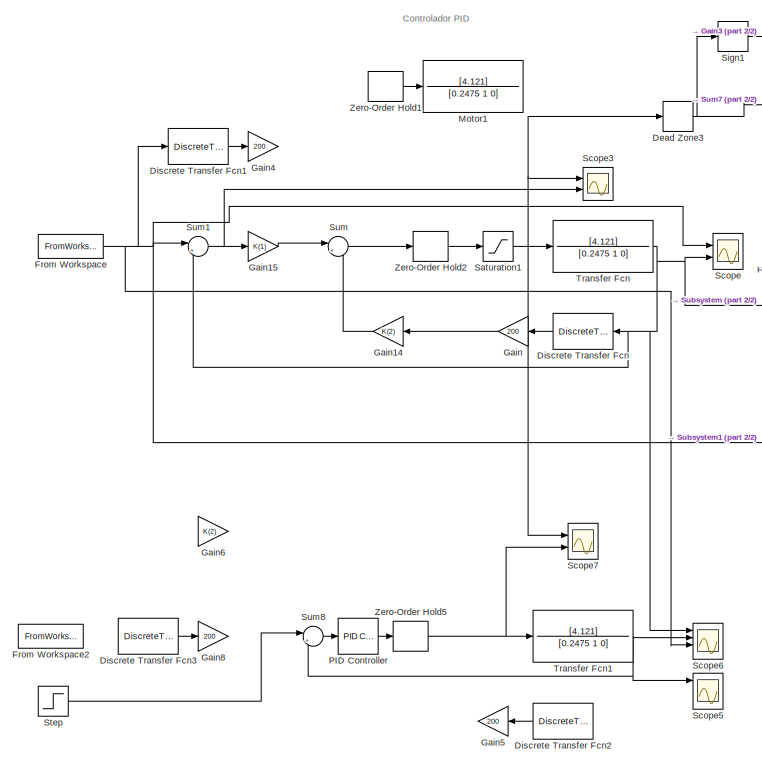
[diagram: root canvas - part 1/2, left side, full height]
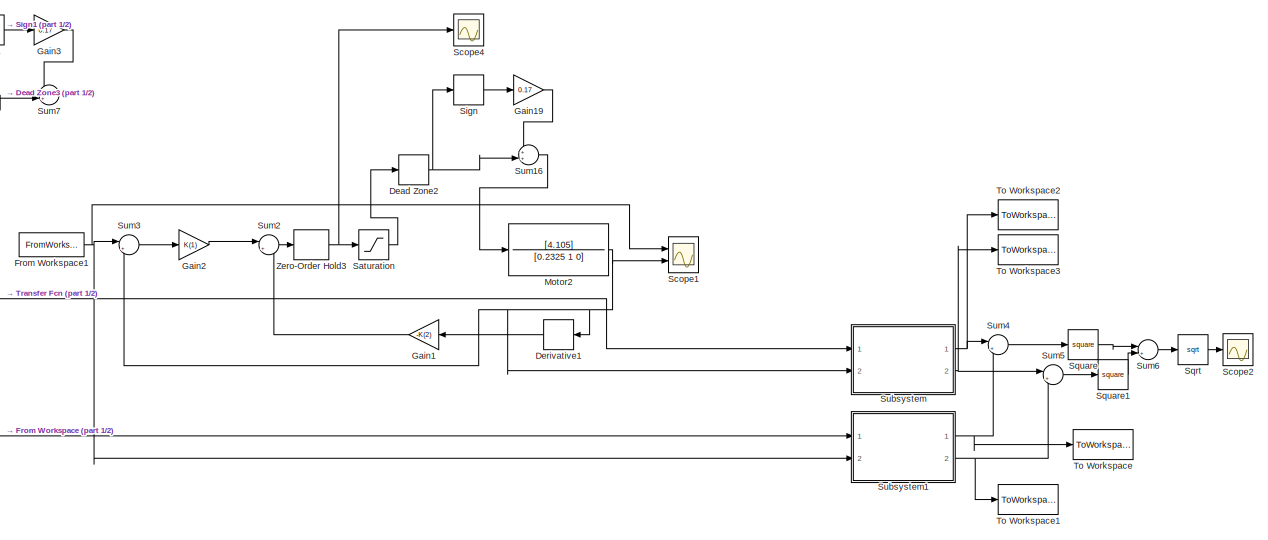
[diagram: root canvas - part 2/2, middle right region]
MODEL slx_8b594aa3f8f0
KIND model
CONFIG AbsTol = auto
CONFIG EnableMultiTasking = off
CONFIG FixedStep = auto
CONFIG MaxStep = auto
CONFIG MinStep = auto
CONFIG RelTol = 1e-3
CONFIG SampleTimeConstraint = Unconstrained
CONFIG Solver = VariableStepAuto
CONFIG SolverName = VariableStepAuto
CONFIG StartTime = 0.0
CONFIG StopTime = 60
BLOCK [DeadZone] Dead Zone2
  LowerValue = -0.17
  UpperValue = 0.17
BLOCK [DeadZone] Dead Zone3
  LowerValue = -0.17
  UpperValue = 0.17
BLOCK [Derivative] Derivative1
  CoefficientInTFapproximation = 100
BLOCK [DiscreteTransferFcn] Discrete Transfer Fcn
  Denominator = [1 0]
  InputPortMap = u0
  Numerator = [1,-1]
  Ports = [1, 1]
BLOCK [DiscreteTransferFcn] Discrete Transfer Fcn1
  Denominator = [1 0]
  InputPortMap = u0
  Numerator = [1,-1]
  Ports = [1, 1]
BLOCK [DiscreteTransferFcn] Discrete Transfer Fcn2
  Denominator = [1 0]
  InputPortMap = u0
  Numerator = [1,-1]
  Ports = [1, 1]
BLOCK [DiscreteTransferFcn] Discrete Transfer Fcn3
  Denominator = [1 0]
  InputPortMap = u0
  Numerator = [1,-1]
  Ports = [1, 1]
BLOCK [FromWorkspace] From Workspace
  VariableName = ttheta1
  ZeroCross = on
BLOCK [FromWorkspace] From Workspace1
  VariableName = ttheta2
  ZeroCross = on
BLOCK [FromWorkspace] From Workspace2
  VariableName = ttheta1
  ZeroCross = on
BLOCK [Gain] Gain
  Gain = 200
  OutDataTypeStr = Inherit: Inherit via internal rule
  ParamDataTypeStr = Inherit: Inherit via internal rule
  SaturateOnIntegerOverflow = off
BLOCK [Gain] Gain1
  Gain = -K(2)
  OutDataTypeStr = Inherit: Inherit via internal rule
  ParamDataTypeStr = Inherit: Inherit via internal rule
  SaturateOnIntegerOverflow = off
BLOCK [Gain] Gain14
  Gain = K(2)
  OutDataTypeStr = Inherit: Inherit via internal rule
  ParamDataTypeStr = Inherit: Inherit via internal rule
  SaturateOnIntegerOverflow = off
BLOCK [Gain] Gain15
  Gain = K(1)
  OutDataTypeStr = Inherit: Inherit via internal rule
  ParamDataTypeStr = Inherit: Inherit via internal rule
  SaturateOnIntegerOverflow = off
BLOCK [Gain] Gain19
  Gain = 0.17
  OutDataTypeStr = Inherit: Inherit via internal rule
  ParamDataTypeStr = Inherit: Inherit via internal rule
  SaturateOnIntegerOverflow = off
BLOCK [Gain] Gain2
  Gain = K(1)
  OutDataTypeStr = Inherit: Inherit via internal rule
  ParamDataTypeStr = Inherit: Inherit via internal rule
  SaturateOnIntegerOverflow = off
BLOCK [Gain] Gain3
  Gain = 0.17
  OutDataTypeStr = Inherit: Inherit via internal rule
  ParamDataTypeStr = Inherit: Inherit via internal rule
  SaturateOnIntegerOverflow = off
BLOCK [Gain] Gain4
  Gain = 200
  OutDataTypeStr = Inherit: Inherit via internal rule
  ParamDataTypeStr = Inherit: Inherit via internal rule
  SaturateOnIntegerOverflow = off
BLOCK [Gain] Gain5
  Gain = 200
  OutDataTypeStr = Inherit: Inherit via internal rule
  ParamDataTypeStr = Inherit: Inherit via internal rule
  SaturateOnIntegerOverflow = off
BLOCK [Gain] Gain6
  Gain = K(2)
  OutDataTypeStr = Inherit: Inherit via internal rule
  ParamDataTypeStr = Inherit: Inherit via internal rule
  SaturateOnIntegerOverflow = off
BLOCK [Gain] Gain8
  Gain = 200
  OutDataTypeStr = Inherit: Inherit via internal rule
  ParamDataTypeStr = Inherit: Inherit via internal rule
  SaturateOnIntegerOverflow = off
BLOCK [TransferFcn] Motor1
  Denominator = [0.2475 1 0]
  Numerator = [4.121]
BLOCK [TransferFcn] Motor2
  Denominator = [0.2325 1 0]
  Numerator = [4.105]
BLOCK [Reference] PID Controller  REF=simulink/Continuous/PID Controller
  Ports = [1, 1]
  SourceBlock = simulink/Continuous/PID Controller
  SourceProductBaseCode = SL
  SourceProductName = Simulink
  SourceType = PID 1dof
BLOCK [Saturate] Saturation
  InputPortMap = u0
  LowerLimit = -1
  Ports = [1, 1]
  UpperLimit = 1
BLOCK [Saturate] Saturation1
  InputPortMap = u0
  LowerLimit = -1
  Ports = [1, 1]
  UpperLimit = 1
BLOCK [Scope] Scope
  Floating = off
  NumInputPorts = 2
  Ports = [2]
  ScopeSpecificationString = Simulink.scopes.TimeScopeBlockCfg('CurrentConfiguration', extmgr.ConfigurationSet(extmgr.Configuration('Core','General UI',true),extmgr.Configuration('Core','Source UI',true),extmgr.Configuration('Sources','WiredSimulink',true),extmgr.Configuration('Visuals','Time Domain',true,'SerializedDisplays',{struct('MinYLimReal','-1.23479','MaxYLimReal','1.73498','YLabelReal','','MinYLimMag','0.00000','MaxY...<+1771ch>
BLOCK [Scope] Scope1
  Floating = off
  NumInputPorts = 2
  Ports = [2]
  ScopeSpecificationString = Simulink.scopes.TimeScopeBlockCfg('CurrentConfiguration', extmgr.ConfigurationSet(extmgr.Configuration('Core','General UI',true),extmgr.Configuration('Core','Source UI',true),extmgr.Configuration('Sources','WiredSimulink',true,'DataLoggingVariableName','ScopeData1'),extmgr.Configuration('Visuals','Time Domain',true,'SerializedDisplays',{struct('MinYLimReal','1.14278','MaxYLimReal','2.0316','YLabel...<+1756ch>
BLOCK [Scope] Scope2
  Floating = off
  NumInputPorts = 1
  Ports = [1]
  ScopeSpecificationString = Simulink.scopes.TimeScopeBlockCfg('CurrentConfiguration', extmgr.ConfigurationSet(extmgr.Configuration('Core','General UI',true),extmgr.Configuration('Core','Source UI',true),extmgr.Configuration('Sources','WiredSimulink',true,'DataLoggingVariableName','ScopeData2'),extmgr.Configuration('Visuals','Time Domain',true,'SerializedDisplays',{struct('MinYLimReal','-73.18866','MaxYLimReal','659.61888','Y...<+1400ch>
BLOCK [Scope] Scope3
  Floating = off
  NumInputPorts = 2
  Ports = [2]
  ScopeSpecificationString = Simulink.scopes.TimeScopeBlockCfg('CurrentConfiguration', extmgr.ConfigurationSet(extmgr.Configuration('Core','General UI',true),extmgr.Configuration('Core','Source UI',true),extmgr.Configuration('Sources','WiredSimulink',true,'DataLoggingVariableName','ScopeData3'),extmgr.Configuration('Visuals','Time Domain',true,'SerializedDisplays',{struct('MinYLimReal','-1.24546','MaxYLimReal','1.20917','YLab...<+1448ch>
BLOCK [Scope] Scope4
  Floating = off
  NumInputPorts = 1
  Ports = [1]
  ScopeSpecificationString = Simulink.scopes.TimeScopeBlockCfg('CurrentConfiguration', extmgr.ConfigurationSet(extmgr.Configuration('Core','General UI',true),extmgr.Configuration('Core','Source UI',true),extmgr.Configuration('Sources','WiredSimulink',true,'DataLoggingVariableName','ScopeData4'),extmgr.Configuration('Visuals','Time Domain',true,'SerializedDisplays',{struct('MinYLimReal','-8.77027','MaxYLimReal','62.30915','YLa...<+1379ch>
BLOCK [Scope] Scope5
  Floating = off
  NumInputPorts = 4
  Ports = [4]
  ScopeSpecificationString = Simulink.scopes.TimeScopeBlockCfg('CurrentConfiguration', extmgr.ConfigurationSet(extmgr.Configuration('Core','General UI',true),extmgr.Configuration('Core','Source UI',true),extmgr.Configuration('Sources','WiredSimulink',true,'DataLoggingVariableName','ScopeData5'),extmgr.Configuration('Visuals','Time Domain',true,'SerializedDisplays',{struct('MinYLimReal','-0.04091','MaxYLimReal','1.09805','YLab...<+1570ch>
BLOCK [Scope] Scope6
  Floating = off
  NumInputPorts = 4
  Ports = [4]
  ScopeSpecificationString = Simulink.scopes.TimeScopeBlockCfg('CurrentConfiguration', extmgr.ConfigurationSet(extmgr.Configuration('Core','General UI',true),extmgr.Configuration('Core','Source UI',true),extmgr.Configuration('Sources','WiredSimulink',true,'DataLoggingVariableName','ScopeData6'),extmgr.Configuration('Visuals','Time Domain',true,'SerializedDisplays',{struct('MinYLimReal','-9.84107','MaxYLimReal','3.22164','YLab...<+1884ch>
BLOCK [Scope] Scope7
  Floating = off
  NumInputPorts = 2
  Ports = [2]
  ScopeSpecificationString = Simulink.scopes.TimeScopeBlockCfg('CurrentConfiguration', extmgr.ConfigurationSet(extmgr.Configuration('Core','General UI',true),extmgr.Configuration('Core','Source UI',true),extmgr.Configuration('Sources','WiredSimulink',true,'DataLoggingVariableName','ScopeData7'),extmgr.Configuration('Visuals','Time Domain',true,'SerializedDisplays',{struct('MinYLimReal','-1.25','MaxYLimReal','1.25','YLabelReal...<+1794ch>
BLOCK [Signum] Sign
BLOCK [Signum] Sign1
BLOCK [Sqrt] Sqrt
BLOCK [Math] Square
  Operator = square
  Ports = [1, 1]
BLOCK [Math] Square1
  Operator = square
  Ports = [1, 1]
BLOCK [Step] Step
  SampleTime = 0
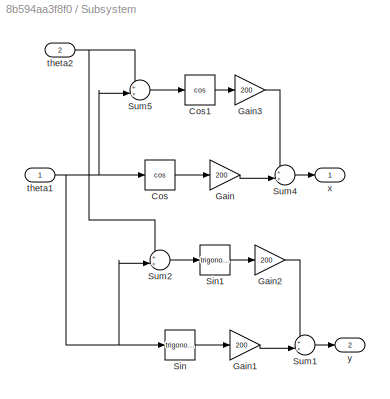
BLOCK [SubSystem] Subsystem
  Ports = [2, 2]
  RequestExecContextInheritance = off
BLOCK [Trigonometry] Subsystem/Cos
  Operator = cos
  Ports = [1, 1]
BLOCK [Trigonometry] Subsystem/Cos1
  Operator = cos
  Ports = [1, 1]
BLOCK [Gain] Subsystem/Gain
  Gain = 200
  OutDataTypeStr = Inherit: Inherit via internal rule
  ParamDataTypeStr = Inherit: Inherit via internal rule
  SaturateOnIntegerOverflow = off
BLOCK [Gain] Subsystem/Gain1
  Gain = 200
  OutDataTypeStr = Inherit: Inherit via internal rule
  ParamDataTypeStr = Inherit: Inherit via internal rule
  SaturateOnIntegerOverflow = off
BLOCK [Gain] Subsystem/Gain2
  Gain = 200
  OutDataTypeStr = Inherit: Inherit via internal rule
  ParamDataTypeStr = Inherit: Inherit via internal rule
  SaturateOnIntegerOverflow = off
BLOCK [Gain] Subsystem/Gain3
  Gain = 200
  OutDataTypeStr = Inherit: Inherit via internal rule
  ParamDataTypeStr = Inherit: Inherit via internal rule
  SaturateOnIntegerOverflow = off
BLOCK [Trigonometry] Subsystem/Sin
  Ports = [1, 1]
BLOCK [Trigonometry] Subsystem/Sin1
  Ports = [1, 1]
BLOCK [Sum] Subsystem/Sum1
  IconShape = round
  InputSameDT = off
  Inputs = ++|
  OutDataTypeStr = Inherit: Inherit via internal rule
  Ports = [2, 1]
  SaturateOnIntegerOverflow = off
BLOCK [Sum] Subsystem/Sum2
  IconShape = round
  InputSameDT = off
  Inputs = ++|
  OutDataTypeStr = Inherit: Inherit via internal rule
  Ports = [2, 1]
  SaturateOnIntegerOverflow = off
BLOCK [Sum] Subsystem/Sum4
  IconShape = round
  InputSameDT = off
  Inputs = ++|
  OutDataTypeStr = Inherit: Inherit via internal rule
  Ports = [2, 1]
  SaturateOnIntegerOverflow = off
BLOCK [Sum] Subsystem/Sum5
  IconShape = round
  InputSameDT = off
  Inputs = ++|
  OutDataTypeStr = Inherit: Inherit via internal rule
  Ports = [2, 1]
  SaturateOnIntegerOverflow = off
BLOCK [Inport] Subsystem/theta1
  IconDisplay = Port number
BLOCK [Inport] Subsystem/theta2
  IconDisplay = Port number
  Port = 2
BLOCK [Outport] Subsystem/x
  IconDisplay = Port number
BLOCK [Outport] Subsystem/y
  IconDisplay = Port number
  Port = 2
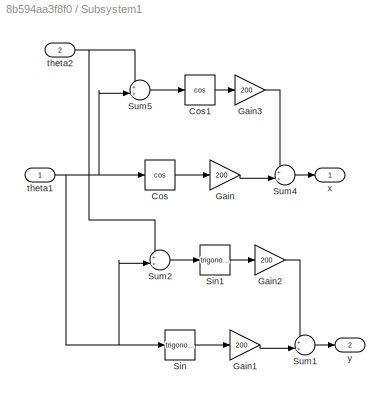
BLOCK [SubSystem] Subsystem1
  Ports = [2, 2]
  RequestExecContextInheritance = off
BLOCK [Trigonometry] Subsystem1/Cos
  Operator = cos
  Ports = [1, 1]
BLOCK [Trigonometry] Subsystem1/Cos1
  Operator = cos
  Ports = [1, 1]
BLOCK [Gain] Subsystem1/Gain
  Gain = 200
  OutDataTypeStr = Inherit: Inherit via internal rule
  ParamDataTypeStr = Inherit: Inherit via internal rule
  SaturateOnIntegerOverflow = off
BLOCK [Gain] Subsystem1/Gain1
  Gain = 200
  OutDataTypeStr = Inherit: Inherit via internal rule
  ParamDataTypeStr = Inherit: Inherit via internal rule
  SaturateOnIntegerOverflow = off
BLOCK [Gain] Subsystem1/Gain2
  Gain = 200
  OutDataTypeStr = Inherit: Inherit via internal rule
  ParamDataTypeStr = Inherit: Inherit via internal rule
  SaturateOnIntegerOverflow = off
BLOCK [Gain] Subsystem1/Gain3
  Gain = 200
  OutDataTypeStr = Inherit: Inherit via internal rule
  ParamDataTypeStr = Inherit: Inherit via internal rule
  SaturateOnIntegerOverflow = off
BLOCK [Trigonometry] Subsystem1/Sin
  Ports = [1, 1]
BLOCK [Trigonometry] Subsystem1/Sin1
  Ports = [1, 1]
BLOCK [Sum] Subsystem1/Sum1
  IconShape = round
  InputSameDT = off
  Inputs = ++|
  OutDataTypeStr = Inherit: Inherit via internal rule
  Ports = [2, 1]
  SaturateOnIntegerOverflow = off
BLOCK [Sum] Subsystem1/Sum2
  IconShape = round
  InputSameDT = off
  Inputs = ++|
  OutDataTypeStr = Inherit: Inherit via internal rule
  Ports = [2, 1]
  SaturateOnIntegerOverflow = off
BLOCK [Sum] Subsystem1/Sum4
  IconShape = round
  InputSameDT = off
  Inputs = ++|
  OutDataTypeStr = Inherit: Inherit via internal rule
  Ports = [2, 1]
  SaturateOnIntegerOverflow = off
BLOCK [Sum] Subsystem1/Sum5
  IconShape = round
  InputSameDT = off
  Inputs = ++|
  OutDataTypeStr = Inherit: Inherit via internal rule
  Ports = [2, 1]
  SaturateOnIntegerOverflow = off
BLOCK [Inport] Subsystem1/theta1
  IconDisplay = Port number
BLOCK [Inport] Subsystem1/theta2
  IconDisplay = Port number
  Port = 2
BLOCK [Outport] Subsystem1/x
  IconDisplay = Port number
BLOCK [Outport] Subsystem1/y
  IconDisplay = Port number
  Port = 2
BLOCK [Sum] Sum
  IconShape = round
  InputSameDT = off
  Inputs = |+-
  OutDataTypeStr = Inherit: Inherit via internal rule
  Ports = [2, 1]
  SaturateOnIntegerOverflow = off
BLOCK [Sum] Sum1
  IconShape = round
  InputSameDT = off
  Inputs = |+-
  OutDataTypeStr = Inherit: Inherit via internal rule
  Ports = [2, 1]
  SaturateOnIntegerOverflow = off
BLOCK [Sum] Sum16
  IconShape = round
  InputSameDT = off
  Inputs = ++|
  OutDataTypeStr = Inherit: Inherit via internal rule
  Ports = [2, 1]
  SaturateOnIntegerOverflow = off
BLOCK [Sum] Sum2
  IconShape = round
  InputSameDT = off
  Inputs = |++
  OutDataTypeStr = Inherit: Inherit via internal rule
  Ports = [2, 1]
  SaturateOnIntegerOverflow = off
BLOCK [Sum] Sum3
  IconShape = round
  InputSameDT = off
  Inputs = |+-
  OutDataTypeStr = Inherit: Inherit via internal rule
  Ports = [2, 1]
  SaturateOnIntegerOverflow = off
BLOCK [Sum] Sum4
  IconShape = round
  InputSameDT = off
  Inputs = |+-
  OutDataTypeStr = Inherit: Inherit via internal rule
  Ports = [2, 1]
  SaturateOnIntegerOverflow = off
BLOCK [Sum] Sum5
  IconShape = round
  InputSameDT = off
  Inputs = |+-
  OutDataTypeStr = Inherit: Inherit via internal rule
  Ports = [2, 1]
  SaturateOnIntegerOverflow = off
BLOCK [Sum] Sum6
  IconShape = round
  InputSameDT = off
  Inputs = |++
  OutDataTypeStr = Inherit: Inherit via internal rule
  Ports = [2, 1]
  SaturateOnIntegerOverflow = off
BLOCK [Sum] Sum7
  IconShape = round
  InputSameDT = off
  Inputs = ++|
  OutDataTypeStr = Inherit: Inherit via internal rule
  Ports = [2, 1]
  SaturateOnIntegerOverflow = off
BLOCK [Sum] Sum8
  IconShape = round
  InputSameDT = off
  Inputs = |+-
  OutDataTypeStr = Inherit: Inherit via internal rule
  Ports = [2, 1]
  SaturateOnIntegerOverflow = off
BLOCK [ToWorkspace] To Workspace
  FixptAsFi = on
  MaxDataPoints = inf
  Ports = [1]
  SampleTime = -1
  Save2DSignal = 3-D array (concatenate along third dimension)
  VariableName = setpointX
BLOCK [ToWorkspace] To Workspace1
  FixptAsFi = on
  MaxDataPoints = inf
  Ports = [1]
  SampleTime = -1
  Save2DSignal = 3-D array (concatenate along third dimension)
  VariableName = setpointY
BLOCK [ToWorkspace] To Workspace2
  FixptAsFi = on
  MaxDataPoints = inf
  Ports = [1]
  SampleTime = -1
  Save2DSignal = 3-D array (concatenate along third dimension)
  VariableName = SalidaX
BLOCK [ToWorkspace] To Workspace3
  FixptAsFi = on
  MaxDataPoints = inf
  Ports = [1]
  SampleTime = -1
  Save2DSignal = 3-D array (concatenate along third dimension)
  VariableName = SalidaY
BLOCK [TransferFcn] Transfer Fcn
  Denominator = [0.2475 1 0]
  Numerator = [4.121]
BLOCK [TransferFcn] Transfer Fcn1
  Denominator = [0.2475 1 0]
  Numerator = [4.121]
BLOCK [ZeroOrderHold] Zero-Order Hold1
  SampleTime = 0.005
BLOCK [ZeroOrderHold] Zero-Order Hold2
  SampleTime = 0.005
BLOCK [ZeroOrderHold] Zero-Order Hold3
  SampleTime = 0.005
BLOCK [ZeroOrderHold] Zero-Order Hold5
  SampleTime = 0.005
ANNOTATION (root): Controlador PID
NET Dead Zone2:1 -> Sign:1, Sum16:2
NET Dead Zone3:1 -> Sign1:1, Sum7:2
LINE Derivative1:1 -> Gain1:1
LINE Discrete Transfer Fcn1:1 -> Gain4:1
LINE Discrete Transfer Fcn2:1 -> Gain5:1
LINE Discrete Transfer Fcn3:1 -> Gain8:1
LINE Discrete Transfer Fcn:1 -> Gain:1
NET From Workspace1:1 -> Scope1:1, Subsystem1:2, Sum3:1
NET From Workspace:1 -> Discrete Transfer Fcn1:1, Scope6:3, Scope:1, Subsystem1:1, Sum1:1
LINE Gain14:1 -> Sum:2
LINE Gain15:1 -> Sum:1
LINE Gain19:1 -> Sum16:1
LINE Gain1:1 -> Sum2:2
LINE Gain2:1 -> Sum2:1
LINE Gain3:1 -> Sum7:1
LINE Gain:1 -> Gain14:1
NET Motor2:1 -> Derivative1:1, Scope1:2, Subsystem:2, Sum3:2
LINE PID Controller:1 -> Zero-Order Hold5:1
NET Saturation1:1 -> Dead Zone3:1, Scope3:1, Scope7:1, Transfer Fcn:1
LINE Saturation:1 -> Dead Zone2:1
LINE Sign1:1 -> Gain3:1
LINE Sign:1 -> Gain19:1
LINE Sqrt:1 -> Scope2:1
LINE Square1:1 -> Sum6:2
LINE Square:1 -> Sum6:1
LINE Step:1 -> Sum8:1
LINE Subsystem/Cos1:1 -> Subsystem/Gain3:1
LINE Subsystem/Cos:1 -> Subsystem/Gain:1
LINE Subsystem/Gain1:1 -> Subsystem/Sum1:2
LINE Subsystem/Gain2:1 -> Subsystem/Sum1:1
LINE Subsystem/Gain3:1 -> Subsystem/Sum4:1
LINE Subsystem/Gain:1 -> Subsystem/Sum4:2
LINE Subsystem/Sin1:1 -> Subsystem/Gain2:1
LINE Subsystem/Sin:1 -> Subsystem/Gain1:1
LINE Subsystem/Sum1:1 -> Subsystem/y:1
LINE Subsystem/Sum2:1 -> Subsystem/Sin1:1
LINE Subsystem/Sum4:1 -> Subsystem/x:1
LINE Subsystem/Sum5:1 -> Subsystem/Cos1:1
NET Subsystem/theta1:1 -> Subsystem/Cos:1, Subsystem/Sin:1, Subsystem/Sum2:2, Subsystem/Sum5:2
NET Subsystem/theta2:1 -> Subsystem/Sum2:1, Subsystem/Sum5:1
LINE Subsystem1/Cos1:1 -> Subsystem1/Gain3:1
LINE Subsystem1/Cos:1 -> Subsystem1/Gain:1
LINE Subsystem1/Gain1:1 -> Subsystem1/Sum1:2
LINE Subsystem1/Gain2:1 -> Subsystem1/Sum1:1
LINE Subsystem1/Gain3:1 -> Subsystem1/Sum4:1
LINE Subsystem1/Gain:1 -> Subsystem1/Sum4:2
LINE Subsystem1/Sin1:1 -> Subsystem1/Gain2:1
LINE Subsystem1/Sin:1 -> Subsystem1/Gain1:1
LINE Subsystem1/Sum1:1 -> Subsystem1/y:1
LINE Subsystem1/Sum2:1 -> Subsystem1/Sin1:1
LINE Subsystem1/Sum4:1 -> Subsystem1/x:1
LINE Subsystem1/Sum5:1 -> Subsystem1/Cos1:1
NET Subsystem1/theta1:1 -> Subsystem1/Cos:1, Subsystem1/Sin:1, Subsystem1/Sum2:2, Subsystem1/Sum5:2
NET Subsystem1/theta2:1 -> Subsystem1/Sum2:1, Subsystem1/Sum5:1
NET Subsystem1:1 -> Sum4:2, To Workspace:1
NET Subsystem1:2 -> Sum5:2, To Workspace1:1
NET Subsystem:1 -> Sum4:1, To Workspace2:1
NET Subsystem:2 -> Sum5:1, To Workspace3:1
LINE Sum16:1 -> Motor2:1
NET Sum1:1 -> Gain15:1, Scope3:2
LINE Sum2:1 -> Zero-Order Hold3:1
LINE Sum3:1 -> Gain2:1
LINE Sum4:1 -> Square:1
LINE Sum5:1 -> Square1:1
LINE Sum6:1 -> Sqrt:1
LINE Sum8:1 -> PID Controller:1
LINE Sum:1 -> Zero-Order Hold2:1
NET Transfer Fcn1:1 -> Scope5:1, Scope6:2, Sum8:2
NET Transfer Fcn:1 -> Discrete Transfer Fcn:1, Scope6:1, Scope:2, Subsystem:1, Sum1:2
LINE Zero-Order Hold1:1 -> Motor1:1
LINE Zero-Order Hold2:1 -> Saturation1:1
NET Zero-Order Hold3:1 -> Saturation:1, Scope4:1
NET Zero-Order Hold5:1 -> Scope7:2, Transfer Fcn1:1
note: NET lines group one-source signal fan-out (src -> all destinations, sorted); 1:1 wires keep LINE
